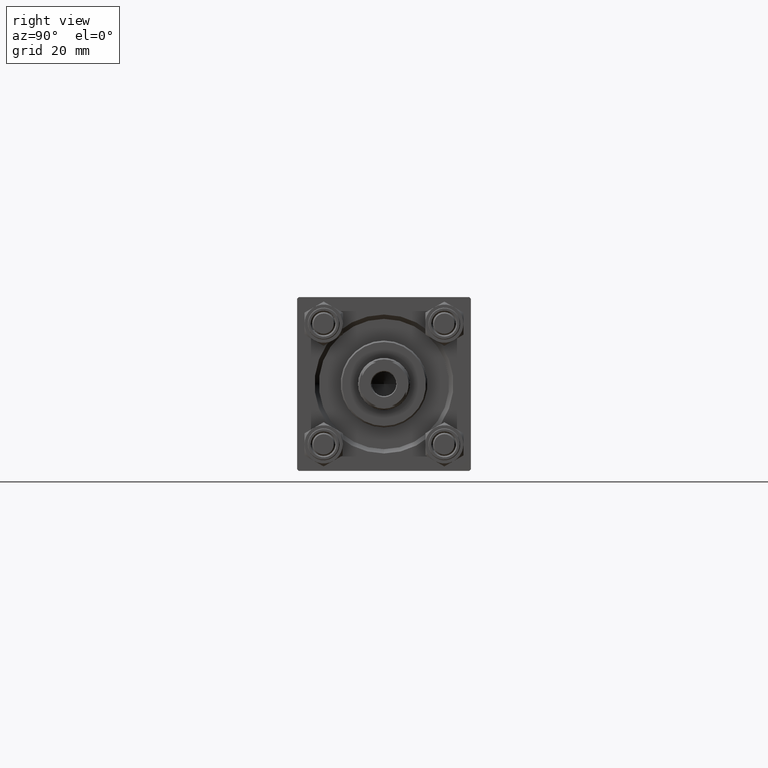
[diagram: clean part render]
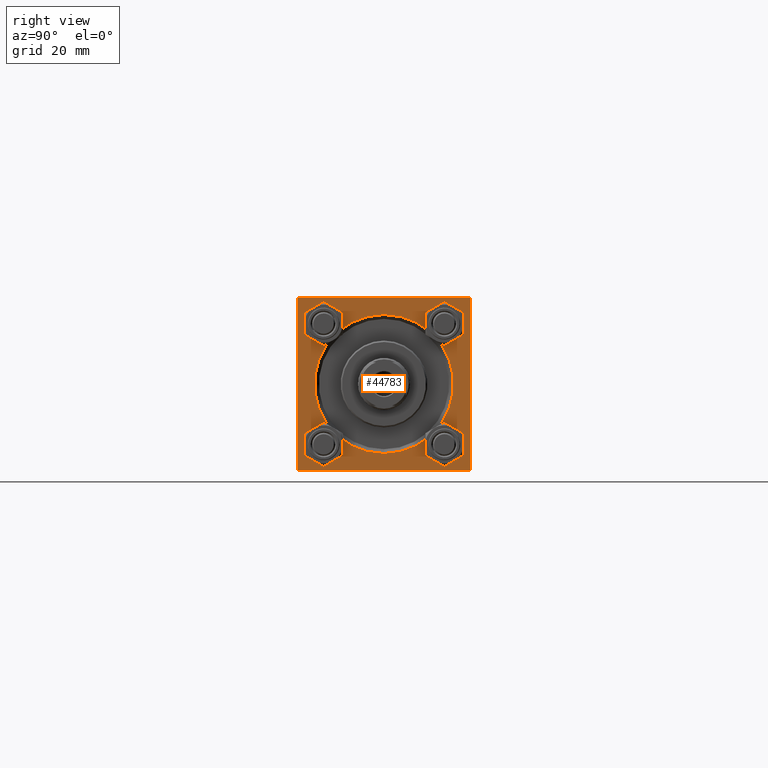
[diagram: same view with one face highlighted and labeled with its STEP entity id]
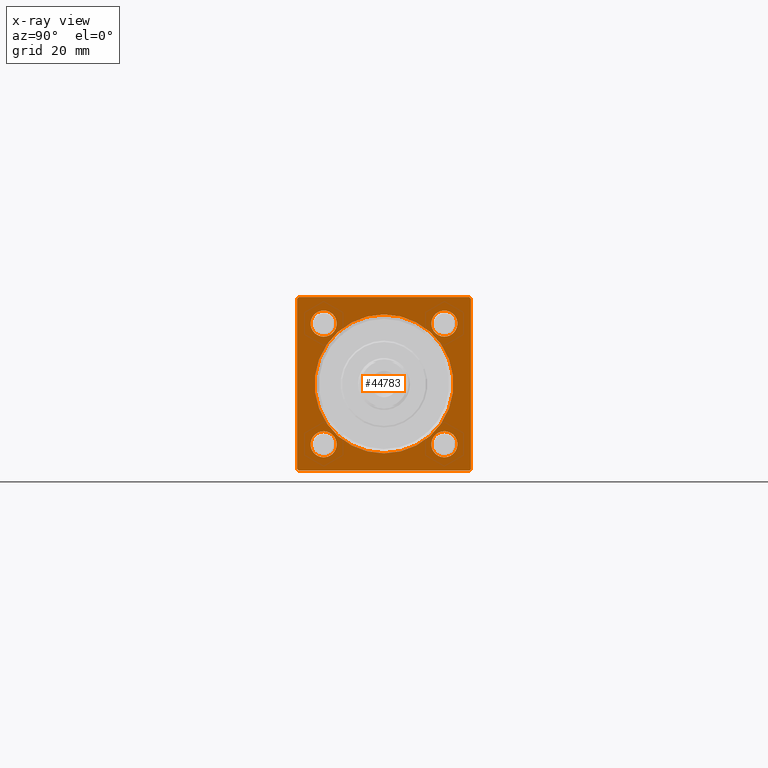
[diagram: x-ray of the same camera — body ghosted, the highlighted face saturated]
A machine part, right view. The second image highlights one B-rep face of the part: STEP entity #44783.
The next image is the same camera in x-ray: the body ghosted, the highlighted face saturated — about 0% of this face is hidden behind the body in this view.
In plain terms, the highlighted planar face has unit normal (-1, 0, 0).
Its self-contained STEP definition (entity closure, byte-faithful):
#25 = DIRECTION ( 'NONE',  ( 0.000000000000000000, 0.000000000000000000, 1.000000000000000000 ) ) ;
#1147 = AXIS2_PLACEMENT_3D ( 'NONE', #12950, #30435, #45818 ) ;
#1789 = DIRECTION ( 'NONE',  ( -0.000000000000000000, 0.7071067811865672237, 0.7071067811865279218 ) ) ;
#2197 = EDGE_CURVE ( 'NONE', #24802, #5814, #12309, .T. ) ;
#2490 = EDGE_CURVE ( 'NONE', #9120, #4511, #18747, .T. ) ;
#2691 = AXIS2_PLACEMENT_3D ( 'NONE', #38491, #12261, #42528 ) ;
#2997 = CARTESIAN_POINT ( 'NONE',  ( 178.0000000000000000, -20.84999999999999076, 25.35000000000000853 ) ) ;
#3209 = EDGE_CURVE ( 'NONE', #24802, #25636, #29687, .T. ) ;
#3526 = VERTEX_POINT ( 'NONE', #4728 ) ;
#3741 = EDGE_CURVE ( 'NONE', #19078, #8423, #30613, .T. ) ;
#3863 = AXIS2_PLACEMENT_3D ( 'NONE', #38354, #43139, #25 ) ;
#4443 = EDGE_CURVE ( 'NONE', #20480, #31115, #39795, .T. ) ;
#4511 = VERTEX_POINT ( 'NONE', #27585 ) ;
#4728 = CARTESIAN_POINT ( 'NONE',  ( 178.0000000000000000, -20.84999999999999076, 16.35000000000000142 ) ) ;
#4820 = EDGE_CURVE ( 'NONE', #19757, #5814, #24245, .T. ) ;
#5162 = EDGE_CURVE ( 'NONE', #41266, #3526, #9980, .T. ) ;
#5303 = CARTESIAN_POINT ( 'NONE',  ( 178.0000000000000000, 20.84999999999999787, 20.85000000000000142 ) ) ;
#5435 = CIRCLE ( 'NONE', #40890, 23.99999999999999645 ) ;
#5493 = ORIENTED_EDGE ( 'NONE', *, *, #41392, .T. ) ;
#5814 = VERTEX_POINT ( 'NONE', #29944 ) ;
#6135 = ORIENTED_EDGE ( 'NONE', *, *, #3209, .T. ) ;
#6246 = EDGE_CURVE ( 'NONE', #3526, #41266, #11631, .T. ) ;
#6735 = DIRECTION ( 'NONE',  ( 0.000000000000000000, -0.7071067811865474617, 0.7071067811865474617 ) ) ;
#7168 = DIRECTION ( 'NONE',  ( -1.000000000000000000, 0.000000000000000000, -0.000000000000000000 ) ) ;
#7435 = DIRECTION ( 'NONE',  ( -1.000000000000000000, 0.000000000000000000, -0.000000000000000000 ) ) ;
#7560 = CARTESIAN_POINT ( 'NONE',  ( 178.0000000000000000, 2.939152317953647500E-15, 23.99999999999999645 ) ) ;
#7696 = EDGE_LOOP ( 'NONE', ( #32951, #38960 ) ) ;
#7828 = AXIS2_PLACEMENT_3D ( 'NONE', #5303, #17119, #32522 ) ;
#7887 = CARTESIAN_POINT ( 'NONE',  ( 178.0000000000000000, 20.84999999999999787, -25.35000000000000497 ) ) ;
#8423 = VERTEX_POINT ( 'NONE', #37262 ) ;
#8588 = AXIS2_PLACEMENT_3D ( 'NONE', #18503, #7168, #34390 ) ;
#8630 = ORIENTED_EDGE ( 'NONE', *, *, #40586, .T. ) ;
#8869 = ORIENTED_EDGE ( 'NONE', *, *, #4443, .T. ) ;
#9120 = VERTEX_POINT ( 'NONE', #49493 ) ;
#9457 = FACE_BOUND ( 'NONE', #32271, .T. ) ;
#9939 = FACE_BOUND ( 'NONE', #35716, .T. ) ;
#9980 = CIRCLE ( 'NONE', #1147, 4.500000000000003553 ) ;
#10375 = CARTESIAN_POINT ( 'NONE',  ( 178.0000000000000000, 0.000000000000000000, 0.000000000000000000 ) ) ;
#11520 = VECTOR ( 'NONE', #39546, 1000.000000000000000 ) ;
#11631 = CIRCLE ( 'NONE', #39833, 4.500000000000003553 ) ;
#11960 = DIRECTION ( 'NONE',  ( -0.000000000000000000, -0.7071067811865474617, -0.7071067811865474617 ) ) ;
#12053 = ORIENTED_EDGE ( 'NONE', *, *, #33004, .T. ) ;
#12142 = DIRECTION ( 'NONE',  ( 0.000000000000000000, -1.000000000000000000, -1.156482317317871478E-16 ) ) ;
#12261 = DIRECTION ( 'NONE',  ( -1.000000000000000000, 0.000000000000000000, -0.000000000000000000 ) ) ;
#12309 = LINE ( 'NONE', #23420, #11520 ) ;
#12482 = ORIENTED_EDGE ( 'NONE', *, *, #35565, .T. ) ;
#12950 = CARTESIAN_POINT ( 'NONE',  ( 178.0000000000000000, -20.84999999999999076, 20.85000000000000497 ) ) ;
#13168 = EDGE_LOOP ( 'NONE', ( #8869, #5493 ) ) ;
#13541 = VERTEX_POINT ( 'NONE', #14386 ) ;
#13585 = VERTEX_POINT ( 'NONE', #7560 ) ;
#13770 = CARTESIAN_POINT ( 'NONE',  ( 178.0000000000000000, 30.00000000000000000, 30.00000000000000000 ) ) ;
#13964 = DIRECTION ( 'NONE',  ( -0.000000000000000000, 0.000000000000000000, 1.000000000000000000 ) ) ;
#14154 = DIRECTION ( 'NONE',  ( 0.000000000000000000, 0.000000000000000000, 1.000000000000000000 ) ) ;
#14325 = CIRCLE ( 'NONE', #3863, 4.500000000000003553 ) ;
#14386 = CARTESIAN_POINT ( 'NONE',  ( 178.0000000000000000, 20.84999999999999787, 16.34999999999999787 ) ) ;
#14418 = EDGE_CURVE ( 'NONE', #13541, #45260, #47242, .T. ) ;
#14986 = CARTESIAN_POINT ( 'NONE',  ( 178.0000000000000000, -20.84999999999999076, 20.85000000000000497 ) ) ;
#15035 = EDGE_CURVE ( 'NONE', #13585, #44224, #45605, .T. ) ;
#15568 = VECTOR ( 'NONE', #1789, 1000.000000000000000 ) ;
#15962 = VECTOR ( 'NONE', #39756, 1000.000000000000114 ) ;
#16057 = CARTESIAN_POINT ( 'NONE',  ( 178.0000000000000000, -29.50000000000000000, -30.00000000000000000 ) ) ;
#17119 = DIRECTION ( 'NONE',  ( -1.000000000000000000, 0.000000000000000000, -0.000000000000000000 ) ) ;
#17339 = CARTESIAN_POINT ( 'NONE',  ( 178.0000000000000000, 29.50000000000000000, 30.00000000000000000 ) ) ;
#17361 = ORIENTED_EDGE ( 'NONE', *, *, #3741, .T. ) ;
#17659 = EDGE_CURVE ( 'NONE', #4511, #9120, #14325, .T. ) ;
#18035 = AXIS2_PLACEMENT_3D ( 'NONE', #24059, #38678, #23811 ) ;
#18503 = CARTESIAN_POINT ( 'NONE',  ( 178.0000000000000000, 0.000000000000000000, 0.000000000000000000 ) ) ;
#18747 = CIRCLE ( 'NONE', #2691, 4.500000000000003553 ) ;
#18936 = CARTESIAN_POINT ( 'NONE',  ( 178.0000000000000000, 29.50000000000000000, 30.00000000000000000 ) ) ;
#19078 = VERTEX_POINT ( 'NONE', #25662 ) ;
#19757 = VERTEX_POINT ( 'NONE', #21643 ) ;
#20176 = CIRCLE ( 'NONE', #48364, 4.500000000000003553 ) ;
#20288 = LINE ( 'NONE', #46780, #24972 ) ;
#20449 = LINE ( 'NONE', #23759, #41585 ) ;
#20480 = VERTEX_POINT ( 'NONE', #7887 ) ;
#21471 = AXIS2_PLACEMENT_3D ( 'NONE', #27558, #31341, #45966 ) ;
#21598 = LINE ( 'NONE', #13770, #26402 ) ;
#21643 = CARTESIAN_POINT ( 'NONE',  ( 178.0000000000000000, 29.49999999999997158, -29.99999999999999289 ) ) ;
#21799 = FACE_BOUND ( 'NONE', #13168, .T. ) ;
#22743 = ORIENTED_EDGE ( 'NONE', *, *, #2490, .T. ) ;
#23420 = CARTESIAN_POINT ( 'NONE',  ( 178.0000000000000000, 30.00000000000000000, 30.00000000000000000 ) ) ;
#23759 = CARTESIAN_POINT ( 'NONE',  ( 178.0000000000000000, 30.00000000000000000, -29.99999999999999289 ) ) ;
#23811 = DIRECTION ( 'NONE',  ( 0.000000000000000000, 0.000000000000000000, 1.000000000000000000 ) ) ;
#24059 = CARTESIAN_POINT ( 'NONE',  ( 178.0000000000000000, 20.84999999999999787, -20.85000000000000142 ) ) ;
#24245 = LINE ( 'NONE', #43642, #15568 ) ;
#24596 = DIRECTION ( 'NONE',  ( -1.000000000000000000, 0.000000000000000000, -0.000000000000000000 ) ) ;
#24802 = VERTEX_POINT ( 'NONE', #42884 ) ;
#24842 = FACE_BOUND ( 'NONE', #36041, .T. ) ;
#24972 = VECTOR ( 'NONE', #39457, 1000.000000000000000 ) ;
#25016 = ORIENTED_EDGE ( 'NONE', *, *, #4820, .T. ) ;
#25076 = DIRECTION ( 'NONE',  ( 0.000000000000000000, 0.000000000000000000, 1.000000000000000000 ) ) ;
#25590 = CIRCLE ( 'NONE', #7828, 4.500000000000003553 ) ;
#25636 = VERTEX_POINT ( 'NONE', #18936 ) ;
#25662 = CARTESIAN_POINT ( 'NONE',  ( 178.0000000000000000, -29.50000000000000000, 29.99999999999999289 ) ) ;
#26240 = ORIENTED_EDGE ( 'NONE', *, *, #14418, .T. ) ;
#26402 = VECTOR ( 'NONE', #29157, 1000.000000000000000 ) ;
#26459 = VERTEX_POINT ( 'NONE', #44574 ) ;
#26840 = CARTESIAN_POINT ( 'NONE',  ( 178.0000000000000000, 0.000000000000000000, -23.99999999999999645 ) ) ;
#27558 = CARTESIAN_POINT ( 'NONE',  ( 178.0000000000000000, 20.84999999999999787, 20.85000000000000142 ) ) ;
#27585 = CARTESIAN_POINT ( 'NONE',  ( 178.0000000000000000, -20.84999999999999076, -16.35000000000000142 ) ) ;
#29157 = DIRECTION ( 'NONE',  ( 0.000000000000000000, -1.000000000000000000, -1.156482317317871478E-16 ) ) ;
#29346 = CARTESIAN_POINT ( 'NONE',  ( 178.0000000000000000, 20.84999999999999787, -20.85000000000000142 ) ) ;
#29687 = LINE ( 'NONE', #17339, #37298 ) ;
#29812 = ORIENTED_EDGE ( 'NONE', *, *, #30134, .F. ) ;
#29944 = CARTESIAN_POINT ( 'NONE',  ( 178.0000000000000000, 30.00000000000000000, -29.49999999999997868 ) ) ;
#30029 = DIRECTION ( 'NONE',  ( -1.000000000000000000, 0.000000000000000000, -0.000000000000000000 ) ) ;
#30134 = EDGE_CURVE ( 'NONE', #19757, #48664, #20449, .T. ) ;
#30435 = DIRECTION ( 'NONE',  ( -1.000000000000000000, 0.000000000000000000, -0.000000000000000000 ) ) ;
#30613 = LINE ( 'NONE', #38439, #46992 ) ;
#30621 = DIRECTION ( 'NONE',  ( 0.000000000000000000, 0.000000000000000000, 1.000000000000000000 ) ) ;
#31115 = VERTEX_POINT ( 'NONE', #35359 ) ;
#31217 = ORIENTED_EDGE ( 'NONE', *, *, #5162, .T. ) ;
#31341 = DIRECTION ( 'NONE',  ( -1.000000000000000000, 0.000000000000000000, -0.000000000000000000 ) ) ;
#32271 = EDGE_LOOP ( 'NONE', ( #22743, #38539 ) ) ;
#32402 = FACE_BOUND ( 'NONE', #7696, .T. ) ;
#32522 = DIRECTION ( 'NONE',  ( 0.000000000000000000, 0.000000000000000000, 1.000000000000000000 ) ) ;
#32641 = DIRECTION ( 'NONE',  ( -1.000000000000000000, 0.000000000000000000, -0.000000000000000000 ) ) ;
#32815 = EDGE_CURVE ( 'NONE', #44224, #13585, #5435, .T. ) ;
#32951 = ORIENTED_EDGE ( 'NONE', *, *, #32815, .T. ) ;
#33004 = EDGE_CURVE ( 'NONE', #45260, #13541, #25590, .T. ) ;
#33389 = PLANE ( 'NONE',  #41907 ) ;
#33764 = EDGE_CURVE ( 'NONE', #25636, #19078, #21598, .T. ) ;
#34390 = DIRECTION ( 'NONE',  ( 0.000000000000000000, 0.000000000000000000, 1.000000000000000000 ) ) ;
#34524 = CARTESIAN_POINT ( 'NONE',  ( 178.0000000000000000, -29.50000000000000000, -30.00000000000000000 ) ) ;
#34596 = EDGE_LOOP ( 'NONE', ( #8630, #12482, #29812, #25016, #41810, #6135, #42310, #17361 ) ) ;
#35359 = CARTESIAN_POINT ( 'NONE',  ( 178.0000000000000000, 20.84999999999999787, -16.34999999999999787 ) ) ;
#35565 = EDGE_CURVE ( 'NONE', #26459, #48664, #42347, .T. ) ;
#35716 = EDGE_LOOP ( 'NONE', ( #48478, #31217 ) ) ;
#36041 = EDGE_LOOP ( 'NONE', ( #26240, #12053 ) ) ;
#37262 = CARTESIAN_POINT ( 'NONE',  ( 178.0000000000000000, -30.00000000000000000, 29.49999999999999289 ) ) ;
#37298 = VECTOR ( 'NONE', #6735, 1000.000000000000114 ) ;
#38354 = CARTESIAN_POINT ( 'NONE',  ( 178.0000000000000000, -20.84999999999999076, -20.85000000000000497 ) ) ;
#38439 = CARTESIAN_POINT ( 'NONE',  ( 178.0000000000000000, -30.00000000000000000, 29.49999999999999289 ) ) ;
#38491 = CARTESIAN_POINT ( 'NONE',  ( 178.0000000000000000, -20.84999999999999076, -20.85000000000000497 ) ) ;
#38539 = ORIENTED_EDGE ( 'NONE', *, *, #17659, .T. ) ;
#38678 = DIRECTION ( 'NONE',  ( -1.000000000000000000, 0.000000000000000000, -0.000000000000000000 ) ) ;
#38960 = ORIENTED_EDGE ( 'NONE', *, *, #15035, .T. ) ;
#39457 = DIRECTION ( 'NONE',  ( 0.000000000000000000, 0.000000000000000000, -1.000000000000000000 ) ) ;
#39546 = DIRECTION ( 'NONE',  ( 0.000000000000000000, 0.000000000000000000, -1.000000000000000000 ) ) ;
#39756 = DIRECTION ( 'NONE',  ( 0.000000000000000000, 0.7071067811865474617, -0.7071067811865474617 ) ) ;
#39795 = CIRCLE ( 'NONE', #18035, 4.500000000000003553 ) ;
#39833 = AXIS2_PLACEMENT_3D ( 'NONE', #14986, #7435, #30621 ) ;
#39977 = FACE_OUTER_BOUND ( 'NONE', #34596, .T. ) ;
#40472 = CARTESIAN_POINT ( 'NONE',  ( 178.0000000000000000, 0.000000000000000000, 0.000000000000000000 ) ) ;
#40586 = EDGE_CURVE ( 'NONE', #8423, #26459, #20288, .T. ) ;
#40890 = AXIS2_PLACEMENT_3D ( 'NONE', #10375, #30029, #14154 ) ;
#41266 = VERTEX_POINT ( 'NONE', #2997 ) ;
#41392 = EDGE_CURVE ( 'NONE', #31115, #20480, #20176, .T. ) ;
#41585 = VECTOR ( 'NONE', #12142, 1000.000000000000000 ) ;
#41810 = ORIENTED_EDGE ( 'NONE', *, *, #2197, .F. ) ;
#41907 = AXIS2_PLACEMENT_3D ( 'NONE', #40472, #24596, #13964 ) ;
#42310 = ORIENTED_EDGE ( 'NONE', *, *, #33764, .T. ) ;
#42347 = LINE ( 'NONE', #34524, #15962 ) ;
#42528 = DIRECTION ( 'NONE',  ( 0.000000000000000000, 0.000000000000000000, 1.000000000000000000 ) ) ;
#42884 = CARTESIAN_POINT ( 'NONE',  ( 178.0000000000000000, 30.00000000000000000, 29.50000000000000000 ) ) ;
#43139 = DIRECTION ( 'NONE',  ( -1.000000000000000000, 0.000000000000000000, -0.000000000000000000 ) ) ;
#43642 = CARTESIAN_POINT ( 'NONE',  ( 178.0000000000000000, 30.00000000000000000, -29.49999999999999289 ) ) ;
#44224 = VERTEX_POINT ( 'NONE', #26840 ) ;
#44574 = CARTESIAN_POINT ( 'NONE',  ( 178.0000000000000000, -30.00000000000000000, -29.49999999999998579 ) ) ;
#44783 = ADVANCED_FACE ( 'NONE', ( #9457, #21799, #24842, #9939, #32402, #39977 ), #33389, .F. ) ;
#45175 = CARTESIAN_POINT ( 'NONE',  ( 178.0000000000000000, 20.84999999999999787, 25.35000000000000497 ) ) ;
#45260 = VERTEX_POINT ( 'NONE', #45175 ) ;
#45605 = CIRCLE ( 'NONE', #8588, 23.99999999999999645 ) ;
#45818 = DIRECTION ( 'NONE',  ( 0.000000000000000000, 0.000000000000000000, 1.000000000000000000 ) ) ;
#45966 = DIRECTION ( 'NONE',  ( 0.000000000000000000, 0.000000000000000000, 1.000000000000000000 ) ) ;
#46780 = CARTESIAN_POINT ( 'NONE',  ( 178.0000000000000000, -30.00000000000000000, 29.99999999999999289 ) ) ;
#46992 = VECTOR ( 'NONE', #11960, 1000.000000000000114 ) ;
#47242 = CIRCLE ( 'NONE', #21471, 4.500000000000003553 ) ;
#48364 = AXIS2_PLACEMENT_3D ( 'NONE', #29346, #32641, #25076 ) ;
#48478 = ORIENTED_EDGE ( 'NONE', *, *, #6246, .T. ) ;
#48664 = VERTEX_POINT ( 'NONE', #16057 ) ;
#49493 = CARTESIAN_POINT ( 'NONE',  ( 178.0000000000000000, -20.84999999999999076, -25.35000000000000853 ) ) ;